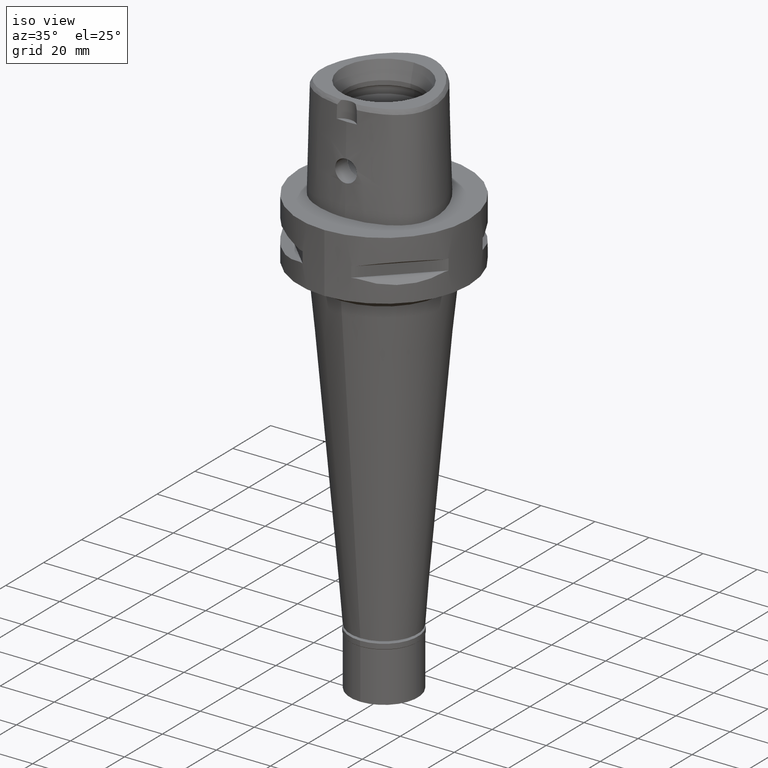
[diagram: clean part render]
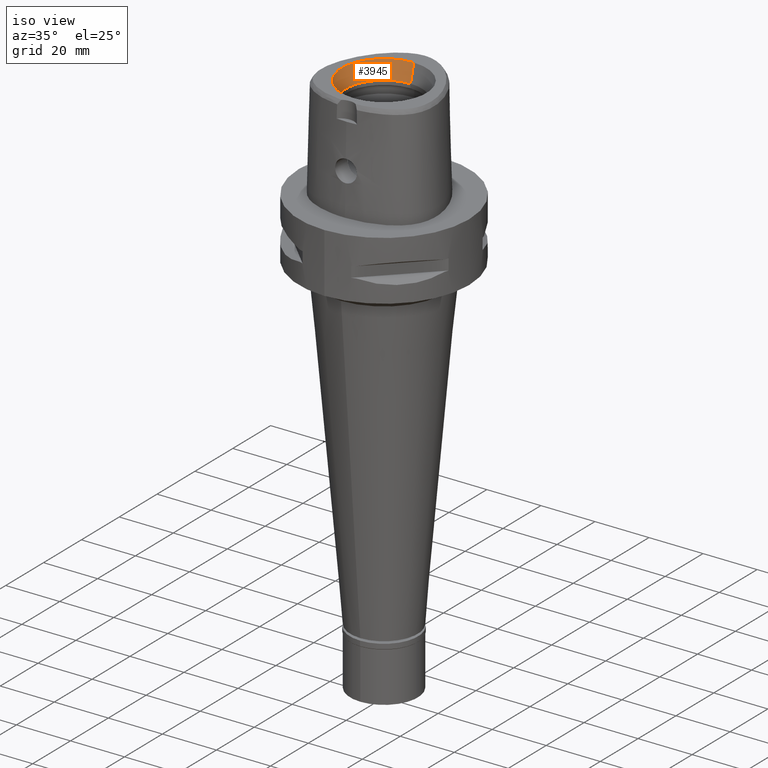
[diagram: same view with one face highlighted and labeled with its STEP entity id]
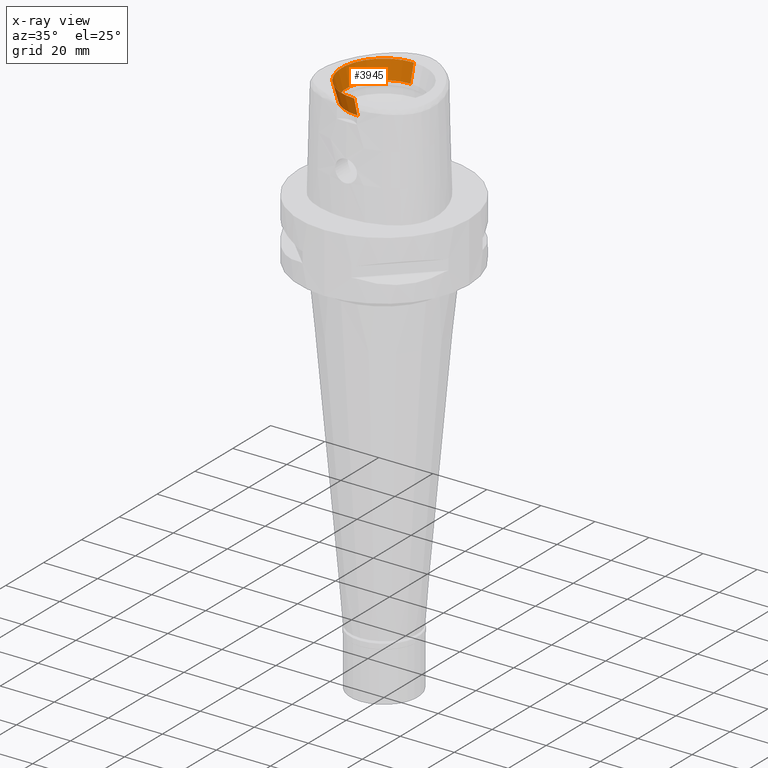
[diagram: x-ray of the same camera — body ghosted, the highlighted face saturated]
A machine part, iso view. The second image highlights one B-rep face of the part: STEP entity #3945.
The next image is the same camera in x-ray: the body ghosted, the highlighted face saturated — about 0% of this face is hidden behind the body in this view.
In plain terms, the highlighted conical surface has half-angle 15 deg.
Its self-contained STEP definition (entity closure, byte-faithful):
#441 = FACE_OUTER_BOUND ( 'NONE', #3061, .T. ) ;
#444 = VECTOR ( 'NONE', #4712, 1000.000000000000000 ) ;
#458 = CARTESIAN_POINT ( 'NONE',  ( 0.0000000000000000000, -14.00000000000000000, 31.60000000000000142 ) ) ;
#674 = LINE ( 'NONE', #3452, #1623 ) ;
#801 = ORIENTED_EDGE ( 'NONE', *, *, #1667, .F. ) ;
#894 = CARTESIAN_POINT ( 'NONE',  ( 0.0000000000000000000, -15.71487483155999776, 38.00000000000000000 ) ) ;
#1110 = ORIENTED_EDGE ( 'NONE', *, *, #4613, .T. ) ;
#1176 = DIRECTION ( 'NONE',  ( 0.0000000000000000000, 0.0000000000000000000, 1.000000000000000000 ) ) ;
#1208 = AXIS2_PLACEMENT_3D ( 'NONE', #1248, #3531, #3940 ) ;
#1248 = CARTESIAN_POINT ( 'NONE',  ( 0.0000000000000000000, 0.0000000000000000000, 38.00000000000000000 ) ) ;
#1359 = VERTEX_POINT ( 'NONE', #894 ) ;
#1360 = DIRECTION ( 'NONE',  ( 0.0000000000000000000, 1.000000000000000000, 0.0000000000000000000 ) ) ;
#1541 = CONICAL_SURFACE ( 'NONE', #2678, 14.85743741577999977, 0.2617993877991000029 ) ;
#1623 = VECTOR ( 'NONE', #2976, 1000.000000000000000 ) ;
#1667 = EDGE_CURVE ( 'NONE', #4230, #1359, #3543, .T. ) ;
#2014 = CARTESIAN_POINT ( 'NONE',  ( 0.0000000000000000000, 0.0000000000000000000, 34.79999999999999716 ) ) ;
#2180 = AXIS2_PLACEMENT_3D ( 'NONE', #2937, #3743, #1360 ) ;
#2632 = VERTEX_POINT ( 'NONE', #3233 ) ;
#2678 = AXIS2_PLACEMENT_3D ( 'NONE', #2014, #1176, #3984 ) ;
#2878 = ORIENTED_EDGE ( 'NONE', *, *, #3741, .T. ) ;
#2937 = CARTESIAN_POINT ( 'NONE',  ( 0.0000000000000000000, 0.0000000000000000000, 31.60000000000000142 ) ) ;
#2976 = DIRECTION ( 'NONE',  ( 0.0000000000000000000, 0.2588190451025869088, 0.9659258262890505486 ) ) ;
#3061 = EDGE_LOOP ( 'NONE', ( #801, #3086, #1110, #2878 ) ) ;
#3086 = ORIENTED_EDGE ( 'NONE', *, *, #3290, .F. ) ;
#3233 = CARTESIAN_POINT ( 'NONE',  ( 0.0000000000000000000, 14.00000000000000000, 31.60000000000000142 ) ) ;
#3290 = EDGE_CURVE ( 'NONE', #2632, #4230, #4385, .T. ) ;
#3452 = CARTESIAN_POINT ( 'NONE',  ( 0.0000000000000000000, 14.00000000000000000, 31.60000000000000142 ) ) ;
#3497 = CARTESIAN_POINT ( 'NONE',  ( 0.0000000000000000000, 15.71487483155999776, 38.00000000000000000 ) ) ;
#3531 = DIRECTION ( 'NONE',  ( 0.0000000000000000000, 0.0000000000000000000, 1.000000000000000000 ) ) ;
#3543 = LINE ( 'NONE', #458, #444 ) ;
#3741 = EDGE_CURVE ( 'NONE', #4696, #1359, #4308, .T. ) ;
#3743 = DIRECTION ( 'NONE',  ( 0.0000000000000000000, 0.0000000000000000000, 1.000000000000000000 ) ) ;
#3940 = DIRECTION ( 'NONE',  ( 0.0000000000000000000, 1.000000000000000000, 0.0000000000000000000 ) ) ;
#3945 = ADVANCED_FACE ( 'NONE', ( #441 ), #1541, .F. ) ;
#3984 = DIRECTION ( 'NONE',  ( 0.0000000000000000000, 1.000000000000000000, 0.0000000000000000000 ) ) ;
#4230 = VERTEX_POINT ( 'NONE', #4337 ) ;
#4308 = CIRCLE ( 'NONE', #1208, 15.71487483155999776 ) ;
#4337 = CARTESIAN_POINT ( 'NONE',  ( 0.0000000000000000000, -14.00000000000000000, 31.60000000000000142 ) ) ;
#4385 = CIRCLE ( 'NONE', #2180, 14.00000000000000000 ) ;
#4613 = EDGE_CURVE ( 'NONE', #2632, #4696, #674, .T. ) ;
#4696 = VERTEX_POINT ( 'NONE', #3497 ) ;
#4712 = DIRECTION ( 'NONE',  ( 0.0000000000000000000, -0.2588190451025869088, 0.9659258262890505486 ) ) ;